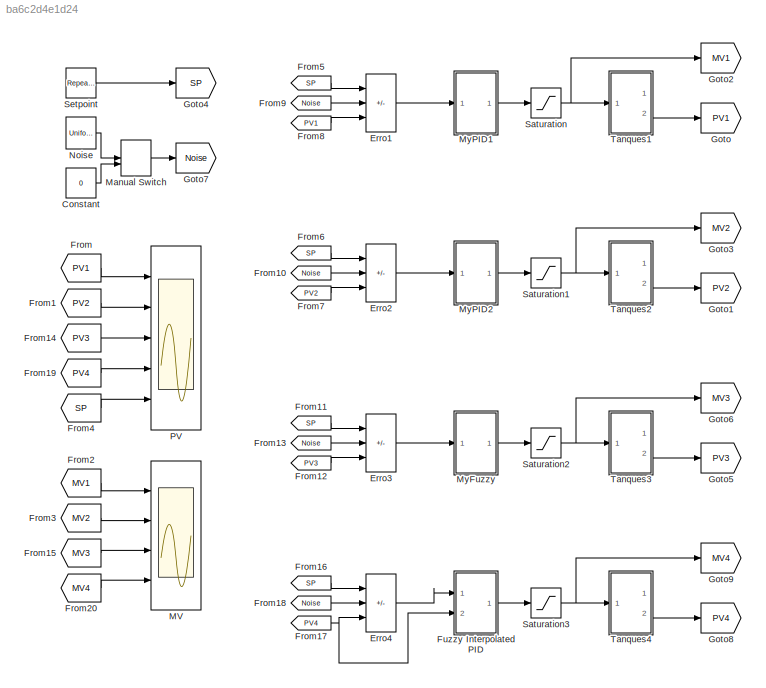
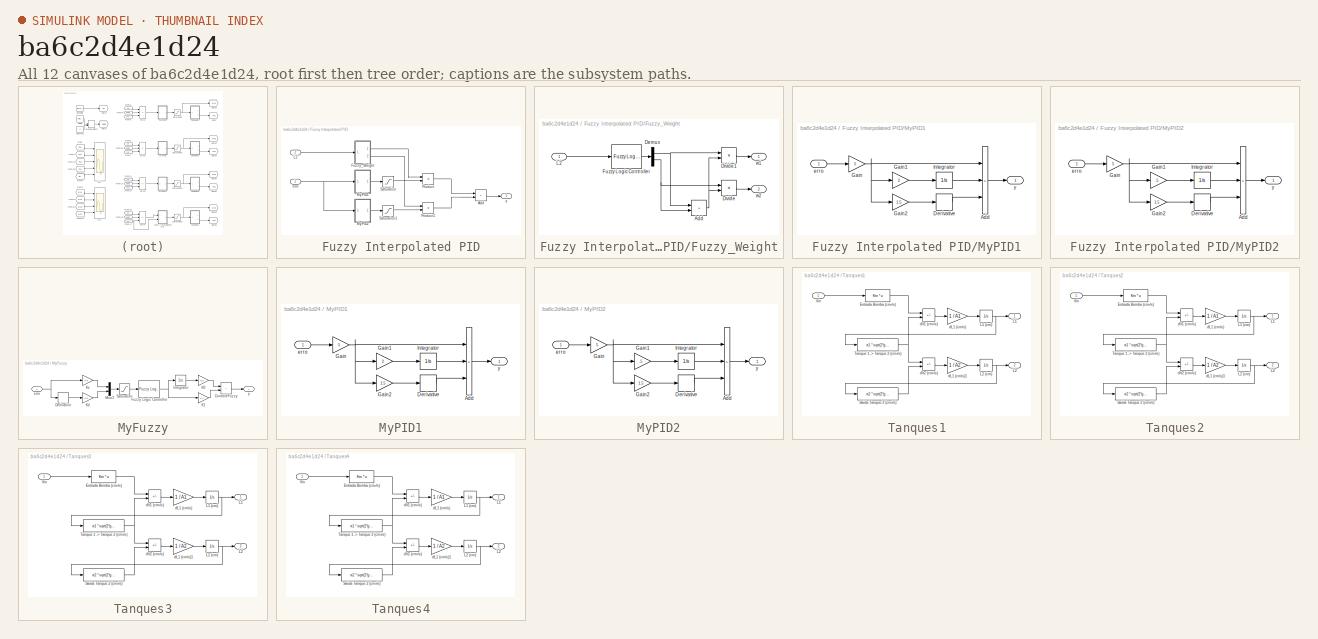
[diagram: thumbnail index - all 12 canvases of the model, root first then tree order]
MODEL slx_ba6c2d4e1d24
KIND model
CONFIG AbsTol = auto
CONFIG EnableMultiTasking = off
CONFIG FixedStep = auto
CONFIG MaxStep = auto
CONFIG MinStep = auto
CONFIG RelTol = 1e-3
CONFIG SampleTimeConstraint = Unconstrained
CONFIG Solver = VariableStepAuto
CONFIG SolverName = VariableStepAuto
CONFIG StartTime = 0.0
CONFIG StopTime = 300
BLOCK [Constant] Constant
  Value = 0
BLOCK [Sum] Erro1
  IconShape = rectangular
  Inputs = ++-
  Ports = [3, 1]
BLOCK [Sum] Erro2
  IconShape = rectangular
  Inputs = ++-
  Ports = [3, 1]
BLOCK [Sum] Erro3
  IconShape = rectangular
  Inputs = ++-
  Ports = [3, 1]
BLOCK [Sum] Erro4
  IconShape = rectangular
  Inputs = ++-
  Ports = [3, 1]
BLOCK [From] From
  GotoTag = PV1
BLOCK [From] From1
  GotoTag = PV2
BLOCK [From] From10
  GotoTag = Noise
BLOCK [From] From11
  GotoTag = SP
BLOCK [From] From12
  GotoTag = PV3
BLOCK [From] From13
  GotoTag = Noise
BLOCK [From] From14
  GotoTag = PV3
BLOCK [From] From15
  GotoTag = MV3
BLOCK [From] From16
  GotoTag = SP
BLOCK [From] From17
  GotoTag = PV4
BLOCK [From] From18
  GotoTag = Noise
BLOCK [From] From19
  GotoTag = PV4
BLOCK [From] From2
  GotoTag = MV1
BLOCK [From] From20
  GotoTag = MV4
BLOCK [From] From3
  GotoTag = MV2
BLOCK [From] From4
  GotoTag = SP
BLOCK [From] From5
  GotoTag = SP
BLOCK [From] From6
  GotoTag = SP
BLOCK [From] From7
  GotoTag = PV2
BLOCK [From] From8
  GotoTag = PV1
BLOCK [From] From9
  GotoTag = Noise
BLOCK [SubSystem] Fuzzy Interpolated PID
  Ports = [2, 1]
  RequestExecContextInheritance = off
BLOCK [Sum] Fuzzy Interpolated PID/Add
  IconShape = rectangular
  Ports = [2, 1]
BLOCK [SubSystem] Fuzzy Interpolated PID/Fuzzy_Weight
  Ports = [1, 2]
  RequestExecContextInheritance = off
BLOCK [Sum] Fuzzy Interpolated PID/Fuzzy_Weight/Add
  IconShape = rectangular
  Ports = [2, 1]
BLOCK [Demux] Fuzzy Interpolated PID/Fuzzy_Weight/Demux
  Outputs = 2
  Ports = [1, 2]
BLOCK [Product] Fuzzy Interpolated PID/Fuzzy_Weight/Divide
  Inputs = */
  Ports = [2, 1]
BLOCK [Product] Fuzzy Interpolated PID/Fuzzy_Weight/Divide1
  Inputs = */
  Ports = [2, 1]
BLOCK [Reference] Fuzzy Interpolated PID/Fuzzy_Weight/Fuzzy Logic Controller  REF=fuzblock/Fuzzy Logic   (lib defined in mdl_858b3b3e7478)
Controller
  Ports = [1, 1]
  SourceBlock = fuzblock/Fuzzy Logic \nController
  SourceProductBaseCode = FL
  SourceType = Fuzzy Inference System
BLOCK [Inport] Fuzzy Interpolated PID/Fuzzy_Weight/L2
BLOCK [Outport] Fuzzy Interpolated PID/Fuzzy_Weight/w1
BLOCK [Outport] Fuzzy Interpolated PID/Fuzzy_Weight/w2
  Port = 2
BLOCK [Inport] Fuzzy Interpolated PID/L2
  Port = 2
BLOCK [SubSystem] Fuzzy Interpolated PID/MyPID1
  Ports = [1, 1]
  RequestExecContextInheritance = off
BLOCK [Sum] Fuzzy Interpolated PID/MyPID1/Add
  IconShape = rectangular
  Inputs = +++
  Ports = [3, 1]
BLOCK [Derivative] Fuzzy Interpolated PID/MyPID1/Derivative
BLOCK [Gain] Fuzzy Interpolated PID/MyPID1/Gain
  Gain = 5
BLOCK [Gain] Fuzzy Interpolated PID/MyPID1/Gain1
  Gain = 2
BLOCK [Gain] Fuzzy Interpolated PID/MyPID1/Gain2
  Gain = 1.5
BLOCK [Integrator] Fuzzy Interpolated PID/MyPID1/Integrator
  Ports = [1, 1]
BLOCK [Inport] Fuzzy Interpolated PID/MyPID1/erro
BLOCK [Outport] Fuzzy Interpolated PID/MyPID1/y
BLOCK [SubSystem] Fuzzy Interpolated PID/MyPID2
  Ports = [1, 1]
  RequestExecContextInheritance = off
BLOCK [Sum] Fuzzy Interpolated PID/MyPID2/Add
  IconShape = rectangular
  Inputs = +++
  Ports = [3, 1]
BLOCK [Derivative] Fuzzy Interpolated PID/MyPID2/Derivative
BLOCK [Gain] Fuzzy Interpolated PID/MyPID2/Gain
  Gain = 5
BLOCK [Gain] Fuzzy Interpolated PID/MyPID2/Gain1
  Gain = .5
BLOCK [Gain] Fuzzy Interpolated PID/MyPID2/Gain2
  Gain = 1.5
BLOCK [Integrator] Fuzzy Interpolated PID/MyPID2/Integrator
  Ports = [1, 1]
BLOCK [Inport] Fuzzy Interpolated PID/MyPID2/erro
BLOCK [Outport] Fuzzy Interpolated PID/MyPID2/y
BLOCK [Product] Fuzzy Interpolated PID/Product
  Ports = [2, 1]
BLOCK [Product] Fuzzy Interpolated PID/Product1
  Ports = [2, 1]
BLOCK [Saturate] Fuzzy Interpolated PID/Saturation
  LowerLimit = 0
  UpperLimit = 120
BLOCK [Saturate] Fuzzy Interpolated PID/Saturation1
  LowerLimit = 0
  UpperLimit = 120
BLOCK [Inport] Fuzzy Interpolated PID/erro
BLOCK [Outport] Fuzzy Interpolated PID/y
BLOCK [Goto] Goto
  GotoTag = PV1
BLOCK [Goto] Goto1
  GotoTag = PV2
BLOCK [Goto] Goto2
  GotoTag = MV1
BLOCK [Goto] Goto3
  GotoTag = MV2
BLOCK [Goto] Goto4
  GotoTag = SP
BLOCK [Goto] Goto5
  GotoTag = PV3
BLOCK [Goto] Goto6
  GotoTag = MV3
BLOCK [Goto] Goto7
  GotoTag = Noise
BLOCK [Goto] Goto8
  GotoTag = PV4
BLOCK [Goto] Goto9
  GotoTag = MV4
BLOCK [Scope] MV
  Floating = off
  NumInputPorts = 4
  Ports = [4]
  ScopeSpecificationString = Simulink.scopes.TimeScopeBlockCfg('CurrentConfiguration', extmgr.ConfigurationSet(extmgr.Configuration('Core','General UI',true),extmgr.Configuration('Core','Source UI',true),extmgr.Configuration('Sources','WiredSimulink',true),extmgr.Configuration('Visuals','Time Domain',true,'SerializedDisplays',{struct('MinYLimReal','-15.00000','MaxYLimReal','135.00000','YLabelReal','','MinYLimMag','0.00000','M...<+1457ch>
BLOCK [ManualSwitch] Manual Switch
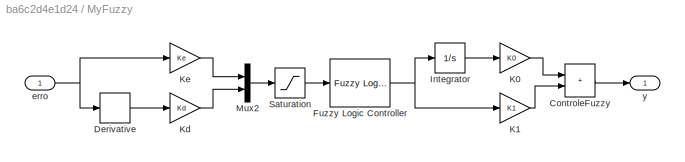
BLOCK [SubSystem] MyFuzzy
  Ports = [1, 1]
  RequestExecContextInheritance = off
BLOCK [Sum] MyFuzzy/ControleFuzzy
  IconShape = rectangular
  Ports = [2, 1]
BLOCK [Derivative] MyFuzzy/Derivative
BLOCK [Reference] MyFuzzy/Fuzzy Logic Controller  REF=fuzblock/Fuzzy Logic   (lib defined in mdl_858b3b3e7478)
Controller
  Ports = [1, 1]
  SourceBlock = fuzblock/Fuzzy Logic \nController
  SourceProductBaseCode = FL
  SourceType = Fuzzy Inference System
BLOCK [Integrator] MyFuzzy/Integrator
  Ports = [1, 1]
BLOCK [Gain] MyFuzzy/K0
  Gain = K0
BLOCK [Gain] MyFuzzy/K1
  Gain = K1
BLOCK [Gain] MyFuzzy/Kd
  Gain = Kd
BLOCK [Gain] MyFuzzy/Ke
  Gain = Ke
BLOCK [Mux] MyFuzzy/Mux2
  DisplayOption = bar
  Inputs = 2
  Ports = [2, 1]
BLOCK [Saturate] MyFuzzy/Saturation
  LowerLimit = -1
  UpperLimit = 1
BLOCK [Inport] MyFuzzy/erro
BLOCK [Outport] MyFuzzy/y
BLOCK [SubSystem] MyPID1
  Ports = [1, 1]
  RequestExecContextInheritance = off
BLOCK [Sum] MyPID1/Add
  IconShape = rectangular
  Inputs = +++
  Ports = [3, 1]
BLOCK [Derivative] MyPID1/Derivative
BLOCK [Gain] MyPID1/Gain
  Gain = 5
BLOCK [Gain] MyPID1/Gain1
  Gain = 2
BLOCK [Gain] MyPID1/Gain2
  Gain = 1.5
BLOCK [Integrator] MyPID1/Integrator
  Ports = [1, 1]
BLOCK [Inport] MyPID1/erro
BLOCK [Outport] MyPID1/y
BLOCK [SubSystem] MyPID2
  Ports = [1, 1]
  RequestExecContextInheritance = off
BLOCK [Sum] MyPID2/Add
  IconShape = rectangular
  Inputs = +++
  Ports = [3, 1]
BLOCK [Derivative] MyPID2/Derivative
BLOCK [Gain] MyPID2/Gain
  Gain = 5
BLOCK [Gain] MyPID2/Gain1
  Gain = .5
BLOCK [Gain] MyPID2/Gain2
  Gain = 1.5
BLOCK [Integrator] MyPID2/Integrator
  Ports = [1, 1]
BLOCK [Inport] MyPID2/erro
BLOCK [Outport] MyPID2/y
BLOCK [UniformRandomNumber] Noise
  Maximum = +.5
  Minimum = -.5
  SampleTime = .5
BLOCK [Scope] PV
  Floating = off
  NumInputPorts = 5
  Ports = [5]
  ScopeSpecificationString = Simulink.scopes.TimeScopeBlockCfg('CurrentConfiguration', extmgr.ConfigurationSet(extmgr.Configuration('Core','General UI',true),extmgr.Configuration('Core','Source UI',true),extmgr.Configuration('Sources','WiredSimulink',true,'DataLoggingVariableName','ScopeData2'),extmgr.Configuration('Visuals','Time Domain',true,'SerializedDisplays',{struct('MinYLimReal','-3.75841','MaxYLimReal','33.82566','YLa...<+1499ch>
BLOCK [Saturate] Saturation
  LowerLimit = 0
  UpperLimit = 120
BLOCK [Saturate] Saturation1
  LowerLimit = 0
  UpperLimit = 120
BLOCK [Saturate] Saturation2
  LowerLimit = 0
  UpperLimit = 120
BLOCK [Saturate] Saturation3
  LowerLimit = 0
  UpperLimit = 120
BLOCK [Reference] Setpoint  REF=simulink/Sources/Repeating
Sequence
Stair
  Ports = [0, 1]
  SourceBlock = simulink/Sources/Repeating\nSequence\nStair
  SourceProductBaseCode = SL
  SourceType = Repeating Sequence Stair
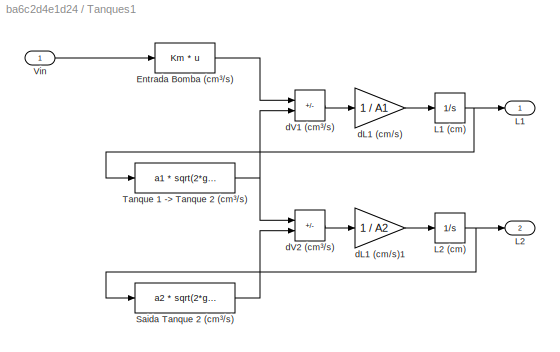
BLOCK [SubSystem] Tanques1
  Ports = [1, 2]
  RequestExecContextInheritance = off
BLOCK [Fcn] Tanques1/Entrada Bomba (cm³//s)
  Expr = Km * u
BLOCK [Outport] Tanques1/L1
BLOCK [Integrator] Tanques1/L1 (cm)
  Ports = [1, 1]
BLOCK [Outport] Tanques1/L2
  Port = 2
BLOCK [Integrator] Tanques1/L2 (cm)
  Ports = [1, 1]
BLOCK [Fcn] Tanques1/Saida Tanque 2 (cm³//s)
  Expr = a2 * sqrt(2*g*u)
BLOCK [Fcn] Tanques1/Tanque 1 -> Tanque 2 (cm³//s)
  Expr = a1 * sqrt(2*g*u)
BLOCK [Inport] Tanques1/Vin
BLOCK [Gain] Tanques1/dL1 (cm//s)
  Gain = 1 / A1
BLOCK [Gain] Tanques1/dL1 (cm//s)1
  Gain = 1 / A2
BLOCK [Sum] Tanques1/dV1 (cm³//s)
  IconShape = rectangular
  Inputs = +-
  Ports = [2, 1]
BLOCK [Sum] Tanques1/dV2 (cm³//s)
  IconShape = rectangular
  Inputs = +-
  Ports = [2, 1]
BLOCK [SubSystem] Tanques2
  Ports = [1, 2]
  RequestExecContextInheritance = off
BLOCK [Fcn] Tanques2/Entrada Bomba (cm³//s)
  Expr = Km * u
BLOCK [Outport] Tanques2/L1
BLOCK [Integrator] Tanques2/L1 (cm)
  Ports = [1, 1]
BLOCK [Outport] Tanques2/L2
  Port = 2
BLOCK [Integrator] Tanques2/L2 (cm)
  Ports = [1, 1]
BLOCK [Fcn] Tanques2/Saida Tanque 2 (cm³//s)
  Expr = a2 * sqrt(2*g*u)
BLOCK [Fcn] Tanques2/Tanque 1 -> Tanque 2 (cm³//s)
  Expr = a1 * sqrt(2*g*u)
BLOCK [Inport] Tanques2/Vin
BLOCK [Gain] Tanques2/dL1 (cm//s)
  Gain = 1 / A1
BLOCK [Gain] Tanques2/dL1 (cm//s)1
  Gain = 1 / A2
BLOCK [Sum] Tanques2/dV1 (cm³//s)
  IconShape = rectangular
  Inputs = +-
  Ports = [2, 1]
BLOCK [Sum] Tanques2/dV2 (cm³//s)
  IconShape = rectangular
  Inputs = +-
  Ports = [2, 1]
BLOCK [SubSystem] Tanques3
  Ports = [1, 2]
  RequestExecContextInheritance = off
BLOCK [Fcn] Tanques3/Entrada Bomba (cm³//s)
  Expr = Km * u
BLOCK [Outport] Tanques3/L1
BLOCK [Integrator] Tanques3/L1 (cm)
  Ports = [1, 1]
BLOCK [Outport] Tanques3/L2
  Port = 2
BLOCK [Integrator] Tanques3/L2 (cm)
  Ports = [1, 1]
BLOCK [Fcn] Tanques3/Saida Tanque 2 (cm³//s)
  Expr = a2 * sqrt(2*g*u)
BLOCK [Fcn] Tanques3/Tanque 1 -> Tanque 2 (cm³//s)
  Expr = a1 * sqrt(2*g*u)
BLOCK [Inport] Tanques3/Vin
BLOCK [Gain] Tanques3/dL1 (cm//s)
  Gain = 1 / A1
BLOCK [Gain] Tanques3/dL1 (cm//s)1
  Gain = 1 / A2
BLOCK [Sum] Tanques3/dV1 (cm³//s)
  IconShape = rectangular
  Inputs = +-
  Ports = [2, 1]
BLOCK [Sum] Tanques3/dV2 (cm³//s)
  IconShape = rectangular
  Inputs = +-
  Ports = [2, 1]
BLOCK [SubSystem] Tanques4
  Ports = [1, 2]
  RequestExecContextInheritance = off
BLOCK [Fcn] Tanques4/Entrada Bomba (cm³//s)
  Expr = Km * u
BLOCK [Outport] Tanques4/L1
BLOCK [Integrator] Tanques4/L1 (cm)
  Ports = [1, 1]
BLOCK [Outport] Tanques4/L2
  Port = 2
BLOCK [Integrator] Tanques4/L2 (cm)
  Ports = [1, 1]
BLOCK [Fcn] Tanques4/Saida Tanque 2 (cm³//s)
  Expr = a2 * sqrt(2*g*u)
BLOCK [Fcn] Tanques4/Tanque 1 -> Tanque 2 (cm³//s)
  Expr = a1 * sqrt(2*g*u)
BLOCK [Inport] Tanques4/Vin
BLOCK [Gain] Tanques4/dL1 (cm//s)
  Gain = 1 / A1
BLOCK [Gain] Tanques4/dL1 (cm//s)1
  Gain = 1 / A2
BLOCK [Sum] Tanques4/dV1 (cm³//s)
  IconShape = rectangular
  Inputs = +-
  Ports = [2, 1]
BLOCK [Sum] Tanques4/dV2 (cm³//s)
  IconShape = rectangular
  Inputs = +-
  Ports = [2, 1]
LINE Constant:1 -> Manual Switch:2
LINE Erro1:1 -> MyPID1:1
LINE Erro2:1 -> MyPID2:1
LINE Erro3:1 -> MyFuzzy:1
LINE Erro4:1 -> Fuzzy Interpolated PID:1
LINE From10:1 -> Erro2:2
LINE From11:1 -> Erro3:1
LINE From12:1 -> Erro3:3
LINE From13:1 -> Erro3:2
LINE From14:1 -> PV:3
LINE From15:1 -> MV:3
LINE From16:1 -> Erro4:1
NET From17:1 -> Erro4:3, Fuzzy Interpolated PID:2
LINE From18:1 -> Erro4:2
LINE From19:1 -> PV:4
LINE From1:1 -> PV:2
LINE From20:1 -> MV:4
LINE From2:1 -> MV:1
LINE From3:1 -> MV:2
LINE From4:1 -> PV:5
LINE From5:1 -> Erro1:1
LINE From6:1 -> Erro2:1
LINE From7:1 -> Erro2:3
LINE From8:1 -> Erro1:3
LINE From9:1 -> Erro1:2
LINE From:1 -> PV:1
LINE Fuzzy Interpolated PID/Add:1 -> Fuzzy Interpolated PID/y:1
NET Fuzzy Interpolated PID/Fuzzy_Weight/Add:1 -> Fuzzy Interpolated PID/Fuzzy_Weight/Divide1:2, Fuzzy Interpolated PID/Fuzzy_Weight/Divide:2
NET Fuzzy Interpolated PID/Fuzzy_Weight/Demux:1 -> Fuzzy Interpolated PID/Fuzzy_Weight/Add:1, Fuzzy Interpolated PID/Fuzzy_Weight/Divide1:1
NET Fuzzy Interpolated PID/Fuzzy_Weight/Demux:2 -> Fuzzy Interpolated PID/Fuzzy_Weight/Add:2, Fuzzy Interpolated PID/Fuzzy_Weight/Divide:1
LINE Fuzzy Interpolated PID/Fuzzy_Weight/Divide1:1 -> Fuzzy Interpolated PID/Fuzzy_Weight/w1:1
LINE Fuzzy Interpolated PID/Fuzzy_Weight/Divide:1 -> Fuzzy Interpolated PID/Fuzzy_Weight/w2:1
LINE Fuzzy Interpolated PID/Fuzzy_Weight/Fuzzy Logic Controller:1 -> Fuzzy Interpolated PID/Fuzzy_Weight/Demux:1
LINE Fuzzy Interpolated PID/Fuzzy_Weight/L2:1 -> Fuzzy Interpolated PID/Fuzzy_Weight/Fuzzy Logic Controller:1
LINE Fuzzy Interpolated PID/Fuzzy_Weight:1 -> Fuzzy Interpolated PID/Product:1
LINE Fuzzy Interpolated PID/Fuzzy_Weight:2 -> Fuzzy Interpolated PID/Product1:1
LINE Fuzzy Interpolated PID/L2:1 -> Fuzzy Interpolated PID/Fuzzy_Weight:1
LINE Fuzzy Interpolated PID/MyPID1/Add:1 -> Fuzzy Interpolated PID/MyPID1/y:1
LINE Fuzzy Interpolated PID/MyPID1/Derivative:1 -> Fuzzy Interpolated PID/MyPID1/Add:3
LINE Fuzzy Interpolated PID/MyPID1/Gain1:1 -> Fuzzy Interpolated PID/MyPID1/Integrator:1
LINE Fuzzy Interpolated PID/MyPID1/Gain2:1 -> Fuzzy Interpolated PID/MyPID1/Derivative:1
NET Fuzzy Interpolated PID/MyPID1/Gain:1 -> Fuzzy Interpolated PID/MyPID1/Add:1, Fuzzy Interpolated PID/MyPID1/Gain1:1, Fuzzy Interpolated PID/MyPID1/Gain2:1
LINE Fuzzy Interpolated PID/MyPID1/Integrator:1 -> Fuzzy Interpolated PID/MyPID1/Add:2
LINE Fuzzy Interpolated PID/MyPID1/erro:1 -> Fuzzy Interpolated PID/MyPID1/Gain:1
LINE Fuzzy Interpolated PID/MyPID1:1 -> Fuzzy Interpolated PID/Saturation:1
LINE Fuzzy Interpolated PID/MyPID2/Add:1 -> Fuzzy Interpolated PID/MyPID2/y:1
LINE Fuzzy Interpolated PID/MyPID2/Derivative:1 -> Fuzzy Interpolated PID/MyPID2/Add:3
LINE Fuzzy Interpolated PID/MyPID2/Gain1:1 -> Fuzzy Interpolated PID/MyPID2/Integrator:1
LINE Fuzzy Interpolated PID/MyPID2/Gain2:1 -> Fuzzy Interpolated PID/MyPID2/Derivative:1
NET Fuzzy Interpolated PID/MyPID2/Gain:1 -> Fuzzy Interpolated PID/MyPID2/Add:1, Fuzzy Interpolated PID/MyPID2/Gain1:1, Fuzzy Interpolated PID/MyPID2/Gain2:1
LINE Fuzzy Interpolated PID/MyPID2/Integrator:1 -> Fuzzy Interpolated PID/MyPID2/Add:2
LINE Fuzzy Interpolated PID/MyPID2/erro:1 -> Fuzzy Interpolated PID/MyPID2/Gain:1
LINE Fuzzy Interpolated PID/MyPID2:1 -> Fuzzy Interpolated PID/Saturation1:1
LINE Fuzzy Interpolated PID/Product1:1 -> Fuzzy Interpolated PID/Add:2
LINE Fuzzy Interpolated PID/Product:1 -> Fuzzy Interpolated PID/Add:1
LINE Fuzzy Interpolated PID/Saturation1:1 -> Fuzzy Interpolated PID/Product1:2
LINE Fuzzy Interpolated PID/Saturation:1 -> Fuzzy Interpolated PID/Product:2
NET Fuzzy Interpolated PID/erro:1 -> Fuzzy Interpolated PID/MyPID1:1, Fuzzy Interpolated PID/MyPID2:1
LINE Fuzzy Interpolated PID:1 -> Saturation3:1
LINE Manual Switch:1 -> Goto7:1
LINE MyFuzzy/ControleFuzzy:1 -> MyFuzzy/y:1
LINE MyFuzzy/Derivative:1 -> MyFuzzy/Kd:1
NET MyFuzzy/Fuzzy Logic Controller:1 -> MyFuzzy/Integrator:1, MyFuzzy/K1:1
LINE MyFuzzy/Integrator:1 -> MyFuzzy/K0:1
LINE MyFuzzy/K0:1 -> MyFuzzy/ControleFuzzy:1
LINE MyFuzzy/K1:1 -> MyFuzzy/ControleFuzzy:2
LINE MyFuzzy/Kd:1 -> MyFuzzy/Mux2:2
LINE MyFuzzy/Ke:1 -> MyFuzzy/Mux2:1
LINE MyFuzzy/Mux2:1 -> MyFuzzy/Saturation:1
LINE MyFuzzy/Saturation:1 -> MyFuzzy/Fuzzy Logic Controller:1
NET MyFuzzy/erro:1 -> MyFuzzy/Derivative:1, MyFuzzy/Ke:1
LINE MyFuzzy:1 -> Saturation2:1
LINE MyPID1/Add:1 -> MyPID1/y:1
LINE MyPID1/Derivative:1 -> MyPID1/Add:3
LINE MyPID1/Gain1:1 -> MyPID1/Integrator:1
LINE MyPID1/Gain2:1 -> MyPID1/Derivative:1
NET MyPID1/Gain:1 -> MyPID1/Add:1, MyPID1/Gain1:1, MyPID1/Gain2:1
LINE MyPID1/Integrator:1 -> MyPID1/Add:2
LINE MyPID1/erro:1 -> MyPID1/Gain:1
LINE MyPID1:1 -> Saturation:1
LINE MyPID2/Add:1 -> MyPID2/y:1
LINE MyPID2/Derivative:1 -> MyPID2/Add:3
LINE MyPID2/Gain1:1 -> MyPID2/Integrator:1
LINE MyPID2/Gain2:1 -> MyPID2/Derivative:1
NET MyPID2/Gain:1 -> MyPID2/Add:1, MyPID2/Gain1:1, MyPID2/Gain2:1
LINE MyPID2/Integrator:1 -> MyPID2/Add:2
LINE MyPID2/erro:1 -> MyPID2/Gain:1
LINE MyPID2:1 -> Saturation1:1
LINE Noise:1 -> Manual Switch:1
NET Saturation1:1 -> Goto3:1, Tanques2:1
NET Saturation2:1 -> Goto6:1, Tanques3:1
NET Saturation3:1 -> Goto9:1, Tanques4:1
NET Saturation:1 -> Goto2:1, Tanques1:1
LINE Setpoint:1 -> Goto4:1
LINE Tanques1/Entrada Bomba (cm³//s):1 -> Tanques1/dV1 (cm³//s):1
NET Tanques1/L1 (cm):1 -> Tanques1/L1:1, Tanques1/Tanque 1 -> Tanque 2 (cm³//s):1
NET Tanques1/L2 (cm):1 -> Tanques1/L2:1, Tanques1/Saida Tanque 2 (cm³//s):1
LINE Tanques1/Saida Tanque 2 (cm³//s):1 -> Tanques1/dV2 (cm³//s):2
NET Tanques1/Tanque 1 -> Tanque 2 (cm³//s):1 -> Tanques1/dV1 (cm³//s):2, Tanques1/dV2 (cm³//s):1
LINE Tanques1/Vin:1 -> Tanques1/Entrada Bomba (cm³//s):1
LINE Tanques1/dL1 (cm//s)1:1 -> Tanques1/L2 (cm):1
LINE Tanques1/dL1 (cm//s):1 -> Tanques1/L1 (cm):1
LINE Tanques1/dV1 (cm³//s):1 -> Tanques1/dL1 (cm//s):1
LINE Tanques1/dV2 (cm³//s):1 -> Tanques1/dL1 (cm//s)1:1
LINE Tanques1:2 -> Goto:1
LINE Tanques2/Entrada Bomba (cm³//s):1 -> Tanques2/dV1 (cm³//s):1
NET Tanques2/L1 (cm):1 -> Tanques2/L1:1, Tanques2/Tanque 1 -> Tanque 2 (cm³//s):1
NET Tanques2/L2 (cm):1 -> Tanques2/L2:1, Tanques2/Saida Tanque 2 (cm³//s):1
LINE Tanques2/Saida Tanque 2 (cm³//s):1 -> Tanques2/dV2 (cm³//s):2
NET Tanques2/Tanque 1 -> Tanque 2 (cm³//s):1 -> Tanques2/dV1 (cm³//s):2, Tanques2/dV2 (cm³//s):1
LINE Tanques2/Vin:1 -> Tanques2/Entrada Bomba (cm³//s):1
LINE Tanques2/dL1 (cm//s)1:1 -> Tanques2/L2 (cm):1
LINE Tanques2/dL1 (cm//s):1 -> Tanques2/L1 (cm):1
LINE Tanques2/dV1 (cm³//s):1 -> Tanques2/dL1 (cm//s):1
LINE Tanques2/dV2 (cm³//s):1 -> Tanques2/dL1 (cm//s)1:1
LINE Tanques2:2 -> Goto1:1
LINE Tanques3/Entrada Bomba (cm³//s):1 -> Tanques3/dV1 (cm³//s):1
NET Tanques3/L1 (cm):1 -> Tanques3/L1:1, Tanques3/Tanque 1 -> Tanque 2 (cm³//s):1
NET Tanques3/L2 (cm):1 -> Tanques3/L2:1, Tanques3/Saida Tanque 2 (cm³//s):1
LINE Tanques3/Saida Tanque 2 (cm³//s):1 -> Tanques3/dV2 (cm³//s):2
NET Tanques3/Tanque 1 -> Tanque 2 (cm³//s):1 -> Tanques3/dV1 (cm³//s):2, Tanques3/dV2 (cm³//s):1
LINE Tanques3/Vin:1 -> Tanques3/Entrada Bomba (cm³//s):1
LINE Tanques3/dL1 (cm//s)1:1 -> Tanques3/L2 (cm):1
LINE Tanques3/dL1 (cm//s):1 -> Tanques3/L1 (cm):1
LINE Tanques3/dV1 (cm³//s):1 -> Tanques3/dL1 (cm//s):1
LINE Tanques3/dV2 (cm³//s):1 -> Tanques3/dL1 (cm//s)1:1
LINE Tanques3:2 -> Goto5:1
LINE Tanques4/Entrada Bomba (cm³//s):1 -> Tanques4/dV1 (cm³//s):1
NET Tanques4/L1 (cm):1 -> Tanques4/L1:1, Tanques4/Tanque 1 -> Tanque 2 (cm³//s):1
NET Tanques4/L2 (cm):1 -> Tanques4/L2:1, Tanques4/Saida Tanque 2 (cm³//s):1
LINE Tanques4/Saida Tanque 2 (cm³//s):1 -> Tanques4/dV2 (cm³//s):2
NET Tanques4/Tanque 1 -> Tanque 2 (cm³//s):1 -> Tanques4/dV1 (cm³//s):2, Tanques4/dV2 (cm³//s):1
LINE Tanques4/Vin:1 -> Tanques4/Entrada Bomba (cm³//s):1
LINE Tanques4/dL1 (cm//s)1:1 -> Tanques4/L2 (cm):1
LINE Tanques4/dL1 (cm//s):1 -> Tanques4/L1 (cm):1
LINE Tanques4/dV1 (cm³//s):1 -> Tanques4/dL1 (cm//s):1
LINE Tanques4/dV2 (cm³//s):1 -> Tanques4/dL1 (cm//s)1:1
LINE Tanques4:2 -> Goto8:1
note: NET lines group one-source signal fan-out (src -> all destinations, sorted); 1:1 wires keep LINE
